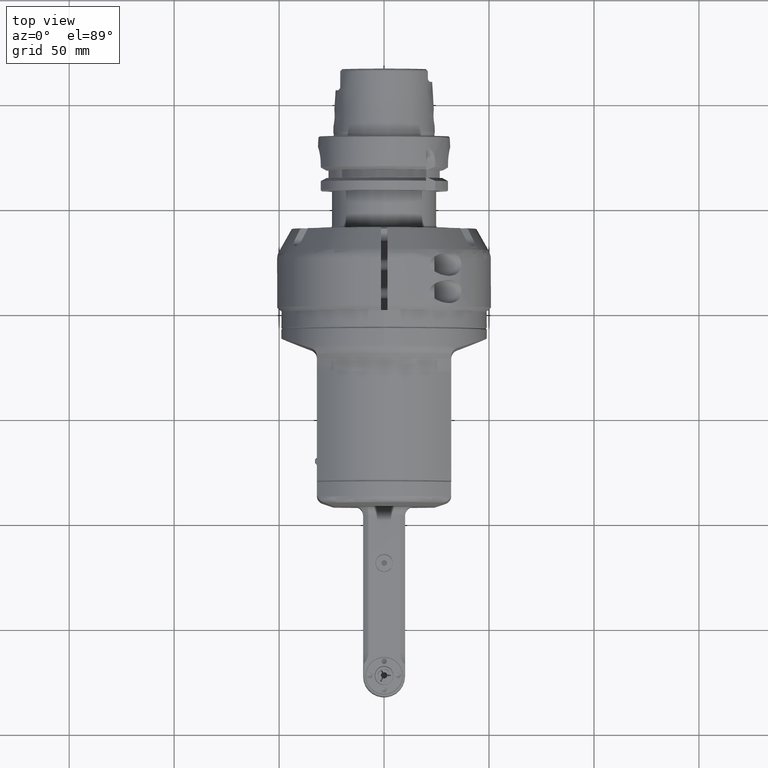
[diagram: clean part render]
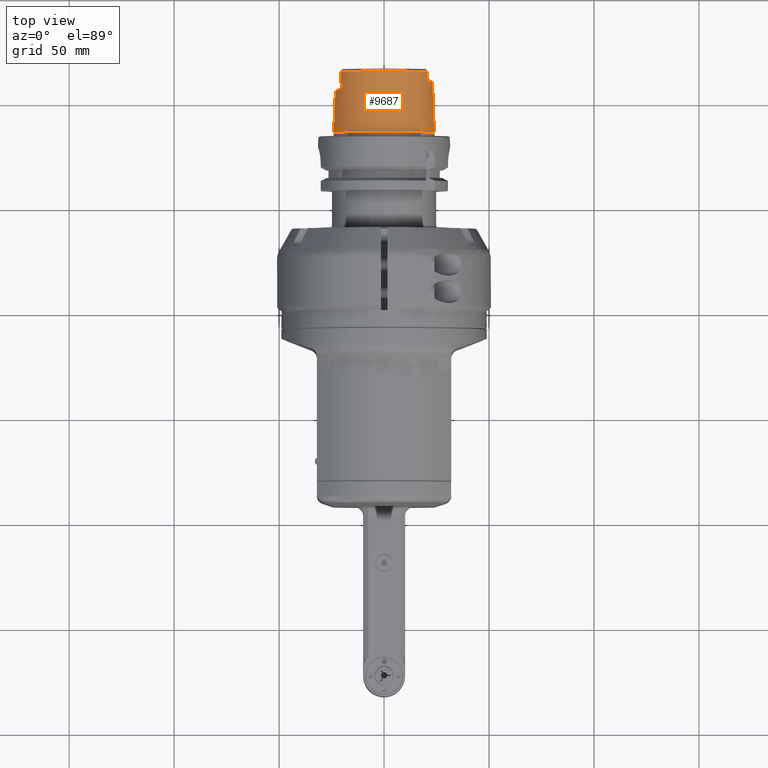
[diagram: same view with one face highlighted and labeled with its STEP entity id]
A machine part, top view. The second image highlights one B-rep face of the part: STEP entity #9687.
In plain terms, the highlighted conical surface has half-angle 2.868 deg.
Its self-contained STEP definition (entity closure, byte-faithful):
#307=FACE_BOUND('',#1601,.T.);
#308=FACE_BOUND('',#1602,.T.);
#420=(
BOUNDED_CURVE()
B_SPLINE_CURVE(2,(#15464,#15465,#15466),.UNSPECIFIED.,.F.,.F.)
B_SPLINE_CURVE_WITH_KNOTS((3,3),(1.86693789051421,2.5252025093279),
 .UNSPECIFIED.)
CURVE()
GEOMETRIC_REPRESENTATION_ITEM()
RATIONAL_B_SPLINE_CURVE((1.02439092202946,1.02616919741191,1.02616919750134))
REPRESENTATION_ITEM('')
);
#421=(
BOUNDED_CURVE()
B_SPLINE_CURVE(2,(#15533,#15534,#15535),.UNSPECIFIED.,.F.,.F.)
B_SPLINE_CURVE_WITH_KNOTS((3,3),(2.52520257553613,3.18346719434885),
 .UNSPECIFIED.)
CURVE()
GEOMETRIC_REPRESENTATION_ITEM()
RATIONAL_B_SPLINE_CURVE((1.02616919750134,1.0261691974119,1.02439092202946))
REPRESENTATION_ITEM('')
);
#800=CONICAL_SURFACE('',#10489,23.49739340079,0.0500570901447486);
#1009=FACE_OUTER_BOUND('',#1600,.T.);
#1600=EDGE_LOOP('',(#7244,#7245,#7246,#7247,#7248,#7249,#7250,#7251,#7252,
#7253,#7254,#7255,#7256,#7257,#7258,#7259,#7260,#7261,#7262,#7263,#7264));
#1601=EDGE_LOOP('',(#7265,#7266));
#1602=EDGE_LOOP('',(#7267));
#2200=CIRCLE('',#10487,24.22021898401);
#2201=CIRCLE('',#10488,24.22021898401);
#2202=CIRCLE('',#10490,22.77456781756);
#2203=CIRCLE('',#10491,23.01805084955);
#2204=CIRCLE('',#10492,22.77456781756);
#2205=CIRCLE('',#10493,23.21844661614);
#2206=CIRCLE('',#10494,22.77456781756);
#2579=B_SPLINE_CURVE_WITH_KNOTS('',3,(#15393,#15394,#15395,#15396,#15397,
#15398,#15399,#15400),.UNSPECIFIED.,.F.,.F.,(4,2,2,4),(1.87852144760714,
1.96332966499537,2.14651647101209,2.20196364531662),.UNSPECIFIED.);
#2580=B_SPLINE_CURVE_WITH_KNOTS('',3,(#15402,#15403,#15404,#15405,#15406,
#15407,#15408,#15409,#15410,#15411,#15412,#15413,#15414,#15415),
 .UNSPECIFIED.,.F.,.F.,(4,2,2,2,2,2,4),(0.648088302085378,0.67504823879193,
0.706405860352622,0.747031442334294,0.813706573923428,0.931756672705542,
0.968140813905552),.UNSPECIFIED.);
#2581=B_SPLINE_CURVE_WITH_KNOTS('',3,(#15419,#15420,#15421,#15422,#15423,
#15424,#15425,#15426,#15427,#15428,#15429,#15430,#15431,#15432),
 .UNSPECIFIED.,.F.,.F.,(4,2,2,2,2,2,4),(0.250897982794745,0.32289928639896,
0.451677279406398,0.504038531696657,0.537850831835839,0.567600566613487,
0.5820221192563),.UNSPECIFIED.);
#2582=B_SPLINE_CURVE_WITH_KNOTS('',3,(#15434,#15435,#15436,#15437,#15438,
#15439,#15440,#15441),.UNSPECIFIED.,.F.,.F.,(4,2,2,4),(1.04367366398559,
1.09912083762025,1.28230764389029,1.36711586171919),.UNSPECIFIED.);
#2583=B_SPLINE_CURVE_WITH_KNOTS('',3,(#15445,#15446,#15447,#15448,#15449,
#15450,#15451,#15452,#15453,#15454,#15455,#15456,#15457,#15458,#15459,#15460,
#15461,#15462),.UNSPECIFIED.,.F.,.F.,(4,2,2,2,2,2,2,2,4),(1.62281865268316,
1.63031260903777,1.63780656539237,1.65279447810159,1.71646866782222,1.78014285754286,
1.96332966286606,2.14651646818926,2.20196364304312),.UNSPECIFIED.);
#2584=B_SPLINE_CURVE_WITH_KNOTS('',3,(#15468,#15469,#15470,#15471,#15472,
#15473,#15474,#15475,#15476,#15477,#15478,#15479,#15480,#15481,#15482,#15483,
#15484,#15485,#15486),.UNSPECIFIED.,.F.,.F.,(4,2,2,2,2,2,3,2,4),(0.591686858486119,
0.711318405574479,0.753394480811399,0.769620085407919,0.779298074344639,
0.784137068813,0.78897606328136,0.793827590149413,0.796896752134967),
 .UNSPECIFIED.);
#2585=B_SPLINE_CURVE_WITH_KNOTS('',3,(#15488,#15489,#15490,#15491,#15492,
#15493,#15494,#15495,#15496,#15497,#15498,#15499),.UNSPECIFIED.,.F.,.F.,
(4,2,2,2,2,4),(-1.35810253274609,-1.33001864997158,-1.27929112228705,-1.22120744000346,
-1.19655389716661,-1.18646391721583),.UNSPECIFIED.);
#2586=B_SPLINE_CURVE_WITH_KNOTS('',3,(#15503,#15504,#15505,#15506,#15507,
#15508,#15509,#15510,#15511,#15512),.UNSPECIFIED.,.F.,.F.,(4,2,2,2,4),(-0.500911046831581,
-0.481998817135151,-0.442781745818096,-0.333902719664991,-0.278648797669768),
 .UNSPECIFIED.);
#2587=B_SPLINE_CURVE_WITH_KNOTS('',3,(#15514,#15515,#15516,#15517,#15518,
#15519,#15520,#15521,#15522,#15523,#15524,#15525,#15526,#15527,#15528,#15529,
#15530,#15531),.UNSPECIFIED.,.F.,.F.,(4,2,2,2,2,2,2,2,4),(0.386476945536789,
0.389546107522341,0.394397634390394,0.399236628858755,0.404075623327115,
0.413753612263837,0.429979216860358,0.472055292097276,0.591686839185636),
 .UNSPECIFIED.);
#2588=B_SPLINE_CURVE_WITH_KNOTS('',3,(#15537,#15538,#15539,#15540,#15541,
#15542,#15543,#15544,#15545,#15546,#15547,#15548,#15549,#15550,#15551,#15552,
#15553,#15554),.UNSPECIFIED.,.F.,.F.,(4,2,2,2,2,2,2,2,4),(1.04367366561104,
1.09912083861657,1.2823076446389,1.46549445066122,1.5291686406059,1.59284283055058,
1.60783074329144,1.61532469966187,1.6228186560323),.UNSPECIFIED.);
#2589=B_SPLINE_CURVE_WITH_KNOTS('',3,(#15558,#15559,#15560,#15561,#15562,
#15563,#15564,#15565,#15566,#15567,#15568,#15569,#15570,#15571,#15572,#15573,
#15574,#15575,#15576),.UNSPECIFIED.,.F.,.F.,(4,2,2,2,3,2,2,2,4),(-0.56247523473426,
-0.421758779612593,-0.281042324490925,-0.140521162245463,0.,0.142680728235708,
0.285361456471416,0.427838019281762,0.570314582092107),.UNSPECIFIED.);
#2590=B_SPLINE_CURVE_WITH_KNOTS('',3,(#15577,#15578,#15579,#15580,#15581,
#15582,#15583,#15584,#15585,#15586,#15587,#15588,#15589,#15590,#15591,#15592,
#15593,#15594),.UNSPECIFIED.,.F.,.F.,(4,2,2,2,2,2,2,2,4),(0.570314582092107,
0.712791144902453,0.855267707712798,0.997948435948506,1.14062916418421,
1.28115032642968,1.42167148867514,1.56238794379681,1.70310439891847),
 .UNSPECIFIED.);
#2591=B_SPLINE_CURVE_WITH_KNOTS('',3,(#15596,#15597,#15598,#15599,#15600,
#15601,#15602,#15603,#15604,#15605,#15606,#15607,#15608,#15609,#15610,#15611,
#15612,#15613,#15614,#15615,#15616,#15617,#15618,#15619,#15620,#15621,#15622,
#15623,#15624,#15625,#15626,#15627,#15628,#15629),.UNSPECIFIED.,.T.,.F.,
(4,2,2,2,2,2,2,2,2,2,2,2,2,2,2,2,4),(-2.26557963365273,-2.12505847140727,
-1.98453730916181,-1.84382085404014,-1.70310439891847,-1.56238794379681,
-1.42167148867514,-1.28115032642968,-1.14062916418421,-0.997948435948507,
-0.855267707712798,-0.712791144902453,-0.570314582092107,-0.427838019281762,
-0.285361456471416,-0.142680728235708,0.),.UNSPECIFIED.);
#2912=LINE('',#15389,#3584);
#3584=VECTOR('',#11977,23.49739340079);
#4344=VERTEX_POINT('',#15382);
#4345=VERTEX_POINT('',#15383);
#4346=VERTEX_POINT('',#15388);
#4347=VERTEX_POINT('',#15390);
#4348=VERTEX_POINT('',#15392);
#4349=VERTEX_POINT('',#15401);
#4350=VERTEX_POINT('',#15416);
#4351=VERTEX_POINT('',#15418);
#4352=VERTEX_POINT('',#15433);
#4353=VERTEX_POINT('',#15442);
#4354=VERTEX_POINT('',#15444);
#4355=VERTEX_POINT('',#15463);
#4356=VERTEX_POINT('',#15467);
#4357=VERTEX_POINT('',#15487);
#4358=VERTEX_POINT('',#15500);
#4359=VERTEX_POINT('',#15502);
#4360=VERTEX_POINT('',#15513);
#4361=VERTEX_POINT('',#15532);
#4362=VERTEX_POINT('',#15536);
#4363=VERTEX_POINT('',#15556);
#4364=VERTEX_POINT('',#15557);
#4365=VERTEX_POINT('',#15595);
#5424=EDGE_CURVE('',#4344,#4345,#2200,.T.);
#5425=EDGE_CURVE('',#4345,#4344,#2201,.T.);
#5427=EDGE_CURVE('',#4344,#4346,#2912,.T.);
#5428=EDGE_CURVE('',#4346,#4347,#2202,.T.);
#5429=EDGE_CURVE('',#4348,#4347,#2579,.T.);
#5430=EDGE_CURVE('',#4348,#4349,#2580,.T.);
#5431=EDGE_CURVE('',#4350,#4349,#2203,.T.);
#5432=EDGE_CURVE('',#4350,#4351,#2581,.T.);
#5433=EDGE_CURVE('',#4352,#4351,#2582,.T.);
#5434=EDGE_CURVE('',#4353,#4352,#2204,.T.);
#5435=EDGE_CURVE('',#4354,#4353,#2583,.T.);
#5436=EDGE_CURVE('',#4355,#4354,#420,.T.);
#5437=EDGE_CURVE('',#4356,#4355,#2584,.T.);
#5438=EDGE_CURVE('',#4357,#4356,#2585,.T.);
#5439=EDGE_CURVE('',#4358,#4357,#2205,.T.);
#5440=EDGE_CURVE('',#4359,#4358,#2586,.T.);
#5441=EDGE_CURVE('',#4360,#4359,#2587,.T.);
#5442=EDGE_CURVE('',#4361,#4360,#421,.T.);
#5443=EDGE_CURVE('',#4362,#4361,#2588,.T.);
#5444=EDGE_CURVE('',#4362,#4346,#2206,.T.);
#5445=EDGE_CURVE('',#4363,#4364,#2589,.T.);
#5446=EDGE_CURVE('',#4364,#4363,#2590,.T.);
#5447=EDGE_CURVE('',#4365,#4365,#2591,.T.);
#7244=ORIENTED_EDGE('',*,*,#5424,.T.);
#7245=ORIENTED_EDGE('',*,*,#5425,.T.);
#7246=ORIENTED_EDGE('',*,*,#5427,.T.);
#7247=ORIENTED_EDGE('',*,*,#5428,.T.);
#7248=ORIENTED_EDGE('',*,*,#5429,.F.);
#7249=ORIENTED_EDGE('',*,*,#5430,.T.);
#7250=ORIENTED_EDGE('',*,*,#5431,.F.);
#7251=ORIENTED_EDGE('',*,*,#5432,.T.);
#7252=ORIENTED_EDGE('',*,*,#5433,.F.);
#7253=ORIENTED_EDGE('',*,*,#5434,.F.);
#7254=ORIENTED_EDGE('',*,*,#5435,.F.);
#7255=ORIENTED_EDGE('',*,*,#5436,.F.);
#7256=ORIENTED_EDGE('',*,*,#5437,.F.);
#7257=ORIENTED_EDGE('',*,*,#5438,.F.);
#7258=ORIENTED_EDGE('',*,*,#5439,.F.);
#7259=ORIENTED_EDGE('',*,*,#5440,.F.);
#7260=ORIENTED_EDGE('',*,*,#5441,.F.);
#7261=ORIENTED_EDGE('',*,*,#5442,.F.);
#7262=ORIENTED_EDGE('',*,*,#5443,.F.);
#7263=ORIENTED_EDGE('',*,*,#5444,.T.);
#7264=ORIENTED_EDGE('',*,*,#5427,.F.);
#7265=ORIENTED_EDGE('',*,*,#5445,.T.);
#7266=ORIENTED_EDGE('',*,*,#5446,.T.);
#7267=ORIENTED_EDGE('',*,*,#5447,.T.);
#9687=ADVANCED_FACE('',(#1009,#307,#308),#800,.T.);
#10487=AXIS2_PLACEMENT_3D('',#15384,#11970,#11971);
#10488=AXIS2_PLACEMENT_3D('',#15385,#11972,#11973);
#10489=AXIS2_PLACEMENT_3D('',#15387,#11975,#11976);
#10490=AXIS2_PLACEMENT_3D('',#15391,#11978,#11979);
#10491=AXIS2_PLACEMENT_3D('',#15417,#11980,#11981);
#10492=AXIS2_PLACEMENT_3D('',#15443,#11982,#11983);
#10493=AXIS2_PLACEMENT_3D('',#15501,#11984,#11985);
#10494=AXIS2_PLACEMENT_3D('',#15555,#11986,#11987);
#11970=DIRECTION('center_axis',(0.,1.,0.));
#11971=DIRECTION('ref_axis',(-0.707106781186547,0.,-0.707106781186547));
#11972=DIRECTION('center_axis',(0.,1.,0.));
#11973=DIRECTION('ref_axis',(-0.707106781186547,0.,-0.707106781186547));
#11975=DIRECTION('center_axis',(0.,-1.,0.));
#11976=DIRECTION('ref_axis',(0.707106781186548,0.,0.707106781186548));
#11977=DIRECTION('',(0.0353809278297194,0.998747405449354,0.0353809278297194));
#11978=DIRECTION('center_axis',(0.,-1.,0.));
#11979=DIRECTION('ref_axis',(-0.707106781186547,0.,-0.707106781186547));
#11980=DIRECTION('center_axis',(0.,1.,0.));
#11981=DIRECTION('ref_axis',(0.950655672568357,0.,0.310247952795186));
#11982=DIRECTION('center_axis',(0.,1.,0.));
#11983=DIRECTION('ref_axis',(0.,0.,1.));
#11984=DIRECTION('center_axis',(0.,1.,0.));
#11985=DIRECTION('ref_axis',(-0.94780590928591,0.,-0.318847860778003));
#11986=DIRECTION('center_axis',(0.,-1.,0.));
#11987=DIRECTION('ref_axis',(-0.707106781186547,0.,-0.707106781186547));
#15382=CARTESIAN_POINT('',(-17.12628108542,85.50412114642,-17.12628108542));
#15383=CARTESIAN_POINT('',(17.1262810854204,85.5041211464186,17.1262810854204));
#15384=CARTESIAN_POINT('Origin',(1.347113091385E-14,85.50412114642,0.));
#15385=CARTESIAN_POINT('Origin',(1.347113091385E-14,85.50412114642,0.));
#15387=CARTESIAN_POINT('Origin',(1.347113091385E-14,99.932082286,0.));
#15388=CARTESIAN_POINT('',(-16.1040513423943,114.360043425581,-16.1040513423943));
#15389=CARTESIAN_POINT('',(-16.6151662139066,99.932082286,-16.6151662139066));
#15390=CARTESIAN_POINT('',(20.86981835535,114.36004342558,-9.117654363463));
#15391=CARTESIAN_POINT('Origin',(1.347113091385E-14,114.36004342558,0.));
#15392=CARTESIAN_POINT('',(20.83290092553,111.,-9.610775788882));
#15393=CARTESIAN_POINT('Ctrl Pts',(20.8329009255283,111.000000000002,-9.61077578889373));
#15394=CARTESIAN_POINT('Ctrl Pts',(20.8413724806425,111.283490428274,-9.55850786932113));
#15395=CARTESIAN_POINT('Ctrl Pts',(20.8478073405863,111.570248202706,-9.50986699995181));
#15396=CARTESIAN_POINT('Ctrl Pts',(20.8638217744841,112.4851565585,-9.36366646758571));
#15397=CARTESIAN_POINT('Ctrl Pts',(20.8685085877053,113.123343076142,-9.27459532051356));
#15398=CARTESIAN_POINT('Ctrl Pts',(20.8700624475187,113.966127053925,-9.16631082824764));
#15399=CARTESIAN_POINT('Ctrl Pts',(20.8700887194267,114.162743462984,-9.14172559906327));
#15400=CARTESIAN_POINT('Ctrl Pts',(20.8698183553477,114.360043425581,-9.11765436347179));
#15401=CARTESIAN_POINT('',(21.88224061159,109.5,-7.141303153407));
#15402=CARTESIAN_POINT('Ctrl Pts',(20.8329009255283,111.000000000002,-9.61077578889374));
#15403=CARTESIAN_POINT('Ctrl Pts',(20.8314489924963,110.951412803024,-9.61973394568026));
#15404=CARTESIAN_POINT('Ctrl Pts',(20.8336401790429,110.903310110275,-9.62073721834895));
#15405=CARTESIAN_POINT('Ctrl Pts',(20.8464278881812,110.798560865748,-9.60554521151347));
#15406=CARTESIAN_POINT('Ctrl Pts',(20.8578578636761,110.745706969117,-9.58707640182997));
#15407=CARTESIAN_POINT('Ctrl Pts',(20.8893183107881,110.632799684012,-9.53199317457096));
#15408=CARTESIAN_POINT('Ctrl Pts',(20.9150585072333,110.560268786847,-9.48448009125569));
#15409=CARTESIAN_POINT('Ctrl Pts',(21.0151373924235,110.338647872012,-9.28874691392544));
#15410=CARTESIAN_POINT('Ctrl Pts',(21.0971469157375,110.198710144837,-9.11993002449012));
#15411=CARTESIAN_POINT('Ctrl Pts',(21.3346001590644,109.852193060079,-8.60152235861784));
#15412=CARTESIAN_POINT('Ctrl Pts',(21.5309104117373,109.629495595536,-8.1402860872223));
#15413=CARTESIAN_POINT('Ctrl Pts',(21.77828244444,109.513086935923,-7.45228581516806));
#15414=CARTESIAN_POINT('Ctrl Pts',(21.8323572224781,109.5,-7.29415485282921));
#15415=CARTESIAN_POINT('Ctrl Pts',(21.8822406115908,109.5,-7.14130315340726));
#15416=CARTESIAN_POINT('',(21.88224061159,109.5,7.141303153408));
#15417=CARTESIAN_POINT('Origin',(1.347113091385E-14,109.5,0.));
#15418=CARTESIAN_POINT('',(20.83290092553,111.00000000001,9.610775788879));
#15419=CARTESIAN_POINT('Ctrl Pts',(21.8822406115905,109.5,7.14130315340816));
#15420=CARTESIAN_POINT('Ctrl Pts',(21.7933640580373,109.5,7.41363694008591));
#15421=CARTESIAN_POINT('Ctrl Pts',(21.6957996581471,109.541612162461,7.68824455746597));
#15422=CARTESIAN_POINT('Ctrl Pts',(21.409444593117,109.755793077105,8.43441100564512));
#15423=CARTESIAN_POINT('Ctrl Pts',(21.2243799959674,109.995523502604,8.84932399272184));
#15424=CARTESIAN_POINT('Ctrl Pts',(21.0365866986543,110.306237291123,9.24395926600556));
#15425=CARTESIAN_POINT('Ctrl Pts',(20.9761032068554,110.416630584019,9.36659326279732));
#15426=CARTESIAN_POINT('Ctrl Pts',(20.8950552401853,110.614619990408,9.52178759584923));
#15427=CARTESIAN_POINT('Ctrl Pts',(20.8739760220774,110.682079648045,9.55958934574004));
#15428=CARTESIAN_POINT('Ctrl Pts',(20.8472940080879,110.795275231779,9.60408350993952));
#15429=CARTESIAN_POINT('Ctrl Pts',(20.8380106848695,110.851677199847,9.61743794135666));
#15430=CARTESIAN_POINT('Ctrl Pts',(20.8324598638865,110.941732781479,9.61869765129533));
#15431=CARTESIAN_POINT('Ctrl Pts',(20.8320321566572,110.970927692037,9.61613593125914));
#15432=CARTESIAN_POINT('Ctrl Pts',(20.8329009255286,111.000000000012,9.61077578889186));
#15433=CARTESIAN_POINT('',(20.86981835535,114.36004342558,9.117654363463));
#15434=CARTESIAN_POINT('Ctrl Pts',(20.8698183553477,114.360043425581,9.11765436347179));
#15435=CARTESIAN_POINT('Ctrl Pts',(20.8700887194234,114.162743465383,9.1417255987706));
#15436=CARTESIAN_POINT('Ctrl Pts',(20.8700624475193,113.966127058706,9.16631082764981));
#15437=CARTESIAN_POINT('Ctrl Pts',(20.8685085877441,113.12334308238,9.27459531965703));
#15438=CARTESIAN_POINT('Ctrl Pts',(20.8638217745454,112.485156563843,9.36366646679598));
#15439=CARTESIAN_POINT('Ctrl Pts',(20.8478073406529,111.570248205658,9.50986699945028));
#15440=CARTESIAN_POINT('Ctrl Pts',(20.8413724806862,111.28349042974,9.55850786905095));
#15441=CARTESIAN_POINT('Ctrl Pts',(20.8329009255286,111.000000000012,9.61077578889185));
#15442=CARTESIAN_POINT('',(-20.86981835533,114.36004342558,9.117654363498));
#15443=CARTESIAN_POINT('Origin',(1.347113091385E-14,114.36004342558,0.));
#15444=CARTESIAN_POINT('',(-20.55704259638,108.59828716012,10.45563865919));
#15445=CARTESIAN_POINT('Ctrl Pts',(-20.5570425901344,108.598287160182,10.4556386714692));
#15446=CARTESIAN_POINT('Ctrl Pts',(-20.5683671261878,108.598287162269,10.433373271905));
#15447=CARTESIAN_POINT('Ctrl Pts',(-20.5788186542378,108.603942557601,10.4121101512896));
#15448=CARTESIAN_POINT('Ctrl Pts',(-20.5981622584297,108.623292714809,10.3716348829625));
#15449=CARTESIAN_POINT('Ctrl Pts',(-20.6070594656734,108.63696673309,10.3524152746639));
#15450=CARTESIAN_POINT('Ctrl Pts',(-20.6315611276163,108.685669135694,10.2980927518617));
#15451=CARTESIAN_POINT('Ctrl Pts',(-20.6450434356398,108.72812725655,10.2662245706467));
#15452=CARTESIAN_POINT('Ctrl Pts',(-20.7016700091883,108.943440630208,10.1277106806721));
#15453=CARTESIAN_POINT('Ctrl Pts',(-20.7253784620132,109.158216249338,10.0539998399404));
#15454=CARTESIAN_POINT('Ctrl Pts',(-20.7668254275143,109.596251093511,9.91728957146815));
#15455=CARTESIAN_POINT('Ctrl Pts',(-20.7815789717773,109.821519834535,9.85990522650072));
#15456=CARTESIAN_POINT('Ctrl Pts',(-20.8259087989342,110.621432468118,9.67204980871616));
#15457=CARTESIAN_POINT('Ctrl Pts',(-20.8419285842928,111.234393481968,9.56353591522435));
#15458=CARTESIAN_POINT('Ctrl Pts',(-20.8638217744216,112.485156553064,9.36366646838923));
#15459=CARTESIAN_POINT('Ctrl Pts',(-20.8685085876657,113.123343069794,9.27459532138512));
#15460=CARTESIAN_POINT('Ctrl Pts',(-20.8700624475181,113.966127049058,9.16631082885614));
#15461=CARTESIAN_POINT('Ctrl Pts',(-20.87008871943,114.16274346054,9.14172559936142));
#15462=CARTESIAN_POINT('Ctrl Pts',(-20.8698183553477,114.360043425577,9.1176543634723));
#15463=CARTESIAN_POINT('',(-19.685027866,107.,12.17012447178));
#15464=CARTESIAN_POINT('Ctrl Pts',(-19.6850278659878,107.000000000015,12.1701244718009));
#15465=CARTESIAN_POINT('Ctrl Pts',(-20.1217907997496,108.598287079941,11.3113960268442));
#15466=CARTESIAN_POINT('Ctrl Pts',(-20.5570425963522,108.598287160179,10.4556386592447));
#15467=CARTESIAN_POINT('',(-20.65337930986,106.44092683567,10.50463704262));
#15468=CARTESIAN_POINT('Ctrl Pts',(-20.6533793536115,106.440926835661,10.5046369566053));
#15469=CARTESIAN_POINT('Ctrl Pts',(-20.4725974305277,106.440926840385,10.8600759507545));
#15470=CARTESIAN_POINT('Ctrl Pts',(-20.2429928414844,106.472474551644,11.2787331001345));
#15471=CARTESIAN_POINT('Ctrl Pts',(-19.9736961951904,106.582759225235,11.7324566113102));
#15472=CARTESIAN_POINT('Ctrl Pts',(-19.8889135428888,106.625901829798,11.8712980961836));
#15473=CARTESIAN_POINT('Ctrl Pts',(-19.7935089562315,106.703861223558,12.0215908841504));
#15474=CARTESIAN_POINT('Ctrl Pts',(-19.7622825990608,106.733836663465,12.0699511150093));
#15475=CARTESIAN_POINT('Ctrl Pts',(-19.7237601065718,106.78500932448,12.1278552591121));
#15476=CARTESIAN_POINT('Ctrl Pts',(-19.7088419471517,106.808455418183,12.1498329028668));
#15477=CARTESIAN_POINT('Ctrl Pts',(-19.691608797045,106.848940865035,12.1738756749758));
#15478=CARTESIAN_POINT('Ctrl Pts',(-19.686685553039,106.863297386325,12.1804656176304));
#15479=CARTESIAN_POINT('Ctrl Pts',(-19.6794566962154,106.893381877848,12.189279508972));
#15480=CARTESIAN_POINT('Ctrl Pts',(-19.6771391685607,106.909101013146,12.1915238238229));
#15481=CARTESIAN_POINT('Ctrl Pts',(-19.6764530970834,106.925210791138,12.1910987489841));
#15482=CARTESIAN_POINT('Ctrl Pts',(-19.6757652487654,106.94136229147,12.1906725732538));
#15483=CARTESIAN_POINT('Ctrl Pts',(-19.6767494293032,106.957121314436,12.1875860130507));
#15484=CARTESIAN_POINT('Ctrl Pts',(-19.6805617300192,106.981758273672,12.1790827163535));
#15485=CARTESIAN_POINT('Ctrl Pts',(-19.6825792075815,106.991039397354,12.1749388286616));
#15486=CARTESIAN_POINT('Ctrl Pts',(-19.6850278659941,107.000000000008,12.1701244717914));
#15487=CARTESIAN_POINT('',(-22.00658090721,105.5,7.403152034143));
#15488=CARTESIAN_POINT('Ctrl Pts',(-22.0065809072154,105.5,7.4031520341448));
#15489=CARTESIAN_POINT('Ctrl Pts',(-21.9446354867472,105.5,7.58729074979955));
#15490=CARTESIAN_POINT('Ctrl Pts',(-21.8700373454034,105.516951499018,7.79894073569062));
#15491=CARTESIAN_POINT('Ctrl Pts',(-21.6158859211317,105.646590962573,8.46885044146755));
#15492=CARTESIAN_POINT('Ctrl Pts',(-21.4523054246618,105.797773516392,8.84986186883586));
#15493=CARTESIAN_POINT('Ctrl Pts',(-21.1477208781622,106.099309719733,9.52003982973984));
#15494=CARTESIAN_POINT('Ctrl Pts',(-21.0011530218963,106.260525851965,9.816480940296));
#15495=CARTESIAN_POINT('Ctrl Pts',(-20.8163823818215,106.394105083438,10.1838806620518));
#15496=CARTESIAN_POINT('Ctrl Pts',(-20.7653534048569,106.421061633791,10.2843617168617));
#15497=CARTESIAN_POINT('Ctrl Pts',(-20.6942562737177,106.438392606277,10.4242598914347));
#15498=CARTESIAN_POINT('Ctrl Pts',(-20.6738427993982,106.440926835122,10.4644033621003));
#15499=CARTESIAN_POINT('Ctrl Pts',(-20.6533793098626,106.440926835657,10.5046370426213));
#15500=CARTESIAN_POINT('',(-22.00658090721,105.5,-7.403152034143));
#15501=CARTESIAN_POINT('Origin',(1.347113091385E-14,105.5,0.));
#15502=CARTESIAN_POINT('',(-20.65337930986,106.44092683567,-10.50463704262));
#15503=CARTESIAN_POINT('Ctrl Pts',(-20.6533793098626,106.440926835657,-10.5046370426213));
#15504=CARTESIAN_POINT('Ctrl Pts',(-20.6847919576156,106.440926834835,-10.4428760007516));
#15505=CARTESIAN_POINT('Ctrl Pts',(-20.7158427666053,106.434945219954,-10.3818148893931));
#15506=CARTESIAN_POINT('Ctrl Pts',(-20.8128316240174,106.399659003094,-10.1907910100508));
#15507=CARTESIAN_POINT('Ctrl Pts',(-20.8800772428557,106.352455114751,-10.0580924634214));
#15508=CARTESIAN_POINT('Ctrl Pts',(-21.1610245006451,106.107768514179,-9.49261363253437));
#15509=CARTESIAN_POINT('Ctrl Pts',(-21.4217726730621,105.790002036225,-8.94733733032288));
#15510=CARTESIAN_POINT('Ctrl Pts',(-21.8234662449697,105.528230617779,-7.93109170591475));
#15511=CARTESIAN_POINT('Ctrl Pts',(-21.9263762672941,105.5,-7.64156803444037));
#15512=CARTESIAN_POINT('Ctrl Pts',(-22.0065809072154,105.5,-7.4031520341448));
#15513=CARTESIAN_POINT('',(-19.685027866,107.,-12.17012447178));
#15514=CARTESIAN_POINT('Ctrl Pts',(-19.6850278659941,107.000000000008,-12.1701244717914));
#15515=CARTESIAN_POINT('Ctrl Pts',(-19.6825792075815,106.991039397354,-12.1749388286616));
#15516=CARTESIAN_POINT('Ctrl Pts',(-19.6805617300192,106.981758273672,-12.1790827163535));
#15517=CARTESIAN_POINT('Ctrl Pts',(-19.6767494293032,106.957121314436,-12.1875860130507));
#15518=CARTESIAN_POINT('Ctrl Pts',(-19.6757652487654,106.94136229147,-12.1906725732538));
#15519=CARTESIAN_POINT('Ctrl Pts',(-19.6771391685607,106.909101013146,-12.1915238238229));
#15520=CARTESIAN_POINT('Ctrl Pts',(-19.6794566962155,106.893381877848,-12.189279508972));
#15521=CARTESIAN_POINT('Ctrl Pts',(-19.686685553039,106.863297386325,-12.1804656176304));
#15522=CARTESIAN_POINT('Ctrl Pts',(-19.691608797045,106.848940865035,-12.1738756749759));
#15523=CARTESIAN_POINT('Ctrl Pts',(-19.7088419471517,106.808455418183,-12.1498329028668));
#15524=CARTESIAN_POINT('Ctrl Pts',(-19.7237601065718,106.78500932448,-12.127855259112));
#15525=CARTESIAN_POINT('Ctrl Pts',(-19.7622825990608,106.733836663465,-12.0699511150093));
#15526=CARTESIAN_POINT('Ctrl Pts',(-19.7935089562315,106.703861223558,-12.0215908841504));
#15527=CARTESIAN_POINT('Ctrl Pts',(-19.8889135428888,106.625901829798,-11.8712980961836));
#15528=CARTESIAN_POINT('Ctrl Pts',(-19.9736961951904,106.582759225235,-11.7324566113102));
#15529=CARTESIAN_POINT('Ctrl Pts',(-20.2429928414844,106.472474551644,-11.2787331001345));
#15530=CARTESIAN_POINT('Ctrl Pts',(-20.472597432219,106.440926835661,-10.8600759516147));
#15531=CARTESIAN_POINT('Ctrl Pts',(-20.6533793536115,106.440926835661,-10.5046369566053));
#15532=CARTESIAN_POINT('',(-20.55704259638,108.59828716012,-10.45563865919));
#15533=CARTESIAN_POINT('Ctrl Pts',(-20.5570425963509,108.598287160179,-10.4556386592471));
#15534=CARTESIAN_POINT('Ctrl Pts',(-20.121790799749,108.598287079939,-11.3113960268454));
#15535=CARTESIAN_POINT('Ctrl Pts',(-19.6850278659878,107.000000000015,-12.1701244718009));
#15536=CARTESIAN_POINT('',(-20.86981835535,114.36004342558,-9.117654363463));
#15537=CARTESIAN_POINT('Ctrl Pts',(-20.8698183553477,114.360043425581,-9.1176543634718));
#15538=CARTESIAN_POINT('Ctrl Pts',(-20.8700887194209,114.162743467163,-9.14172559855336));
#15539=CARTESIAN_POINT('Ctrl Pts',(-20.8700624475197,113.966127062256,-9.16631082720605));
#15540=CARTESIAN_POINT('Ctrl Pts',(-20.8685085877729,113.12334308701,-9.27459531902123));
#15541=CARTESIAN_POINT('Ctrl Pts',(-20.8638217745908,112.485156567809,-9.36366646620984));
#15542=CARTESIAN_POINT('Ctrl Pts',(-20.8419285845549,111.23439349186,-9.56353591346666));
#15543=CARTESIAN_POINT('Ctrl Pts',(-20.8259087992307,110.621432475627,-9.67204980718885));
#15544=CARTESIAN_POINT('Ctrl Pts',(-20.7815789720648,109.821519838973,-9.85990522537639));
#15545=CARTESIAN_POINT('Ctrl Pts',(-20.7668254277979,109.59625109713,-9.91728957045448));
#15546=CARTESIAN_POINT('Ctrl Pts',(-20.7253784622613,109.158216251336,-10.0539998392007));
#15547=CARTESIAN_POINT('Ctrl Pts',(-20.7016700094214,108.943440631395,-10.127710680064));
#15548=CARTESIAN_POINT('Ctrl Pts',(-20.6450434357602,108.728127256937,-10.266224570361));
#15549=CARTESIAN_POINT('Ctrl Pts',(-20.6315611277239,108.685669135968,-10.2980927516157));
#15550=CARTESIAN_POINT('Ctrl Pts',(-20.6070594657535,108.636966733219,-10.3524152744901));
#15551=CARTESIAN_POINT('Ctrl Pts',(-20.5981622584988,108.623292714897,-10.3716348828157));
#15552=CARTESIAN_POINT('Ctrl Pts',(-20.5788186542789,108.603942557623,-10.4121101512061));
#15553=CARTESIAN_POINT('Ctrl Pts',(-20.5683671263183,108.598287160182,-10.4333732719121));
#15554=CARTESIAN_POINT('Ctrl Pts',(-20.5570425901344,108.598287160182,-10.4556386714692));
#15555=CARTESIAN_POINT('Origin',(1.347113091385E-14,114.36004342558,0.));
#15556=CARTESIAN_POINT('',(-23.68186182637,96.25,0.));
#15557=CARTESIAN_POINT('',(-24.0576038887331,88.75,4.59242549680257E-16));
#15558=CARTESIAN_POINT('Ctrl Pts',(-23.6818618263774,96.25,-9.71445146547012E-16));
#15559=CARTESIAN_POINT('Ctrl Pts',(-23.6818618263774,96.25,0.469054850405556));
#15560=CARTESIAN_POINT('Ctrl Pts',(-23.6711804503687,96.1566215303588,0.969264895238196));
#15561=CARTESIAN_POINT('Ctrl Pts',(-23.6345973217103,95.777053954328,1.88978114724752));
#15562=CARTESIAN_POINT('Ctrl Pts',(-23.6094750319828,95.4908863561182,2.31012703498402));
#15563=CARTESIAN_POINT('Ctrl Pts',(-23.5683046058624,94.8309014900085,2.97462220634907));
#15564=CARTESIAN_POINT('Ctrl Pts',(-23.5496143871783,94.4129130783974,3.2635247030736));
#15565=CARTESIAN_POINT('Ctrl Pts',(-23.5393999048604,93.4961356810231,3.64932097112701));
#15566=CARTESIAN_POINT('Ctrl Pts',(-23.5487000186238,92.9973322043523,3.74620169322924));
#15567=CARTESIAN_POINT('Ctrl Pts',(-23.5718461085892,92.529515050341,3.74988384644156));
#15568=CARTESIAN_POINT('Ctrl Pts',(-23.5953479137215,92.0545083598975,3.75362258794793));
#15569=CARTESIAN_POINT('Ctrl Pts',(-23.636207974791,91.5486113203454,3.66191293850585));
#15570=CARTESIAN_POINT('Ctrl Pts',(-23.738916568537,90.6185366250423,3.28250562870907));
#15571=CARTESIAN_POINT('Ctrl Pts',(-23.7999226154427,90.1942405861679,2.99487058324756));
#15572=CARTESIAN_POINT('Ctrl Pts',(-23.9079449341569,89.5238500581351,2.32973588252695));
#15573=CARTESIAN_POINT('Ctrl Pts',(-23.9620973119612,89.2326842310968,1.90776874445894));
#15574=CARTESIAN_POINT('Ctrl Pts',(-24.0373189681924,88.8457239031291,0.98040819673589));
#15575=CARTESIAN_POINT('Ctrl Pts',(-24.0576038887331,88.75,0.474921876034485));
#15576=CARTESIAN_POINT('Ctrl Pts',(-24.0576038887331,88.75,4.16333634234434E-16));
#15577=CARTESIAN_POINT('Ctrl Pts',(-24.0576038887331,88.75,4.16333634234434E-16));
#15578=CARTESIAN_POINT('Ctrl Pts',(-24.0576038887331,88.75,-0.474921876034484));
#15579=CARTESIAN_POINT('Ctrl Pts',(-24.0373189681924,88.8457239031291,-0.980408196735887));
#15580=CARTESIAN_POINT('Ctrl Pts',(-23.9620973119612,89.2326842310968,-1.90776874445894));
#15581=CARTESIAN_POINT('Ctrl Pts',(-23.9079449341569,89.5238500581351,-2.32973588252695));
#15582=CARTESIAN_POINT('Ctrl Pts',(-23.7999226154427,90.1942405861679,-2.99487058324756));
#15583=CARTESIAN_POINT('Ctrl Pts',(-23.738916568537,90.6185366250423,-3.28250562870908));
#15584=CARTESIAN_POINT('Ctrl Pts',(-23.636207974791,91.5486113203454,-3.66191293850586));
#15585=CARTESIAN_POINT('Ctrl Pts',(-23.5953479137215,92.0545083598975,-3.75362258794793));
#15586=CARTESIAN_POINT('Ctrl Pts',(-23.5487000186238,92.9973322043523,-3.74620169322924));
#15587=CARTESIAN_POINT('Ctrl Pts',(-23.5393999048604,93.4961356810231,-3.64932097112701));
#15588=CARTESIAN_POINT('Ctrl Pts',(-23.5496143871783,94.4129130783974,-3.2635247030736));
#15589=CARTESIAN_POINT('Ctrl Pts',(-23.5683046058624,94.8309014900085,-2.97462220634907));
#15590=CARTESIAN_POINT('Ctrl Pts',(-23.6094750319828,95.4908863561182,-2.31012703498402));
#15591=CARTESIAN_POINT('Ctrl Pts',(-23.6345973217103,95.777053954328,-1.88978114724752));
#15592=CARTESIAN_POINT('Ctrl Pts',(-23.6711804503687,96.1566215303588,-0.9692648952382));
#15593=CARTESIAN_POINT('Ctrl Pts',(-23.6818618263774,96.25,-0.469054850405557));
#15594=CARTESIAN_POINT('Ctrl Pts',(-23.6818618263774,96.25,-4.16333634234434E-16));
#15595=CARTESIAN_POINT('',(24.05760388874,88.74999999999,0.));
#15596=CARTESIAN_POINT('Ctrl Pts',(23.5718461085892,92.529515050341,3.74988384644156));
#15597=CARTESIAN_POINT('Ctrl Pts',(23.5487000186239,92.9973322043523,3.74620169322923));
#15598=CARTESIAN_POINT('Ctrl Pts',(23.5393999048604,93.4961356810231,3.64932097112701));
#15599=CARTESIAN_POINT('Ctrl Pts',(23.5496143871783,94.4129130783974,3.26352470307359));
#15600=CARTESIAN_POINT('Ctrl Pts',(23.5683046058624,94.8309014900085,2.97462220634907));
#15601=CARTESIAN_POINT('Ctrl Pts',(23.6094750319828,95.4908863561182,2.31012703498402));
#15602=CARTESIAN_POINT('Ctrl Pts',(23.6345973217103,95.777053954328,1.88978114724752));
#15603=CARTESIAN_POINT('Ctrl Pts',(23.6711804503688,96.1566215303588,0.969264895238196));
#15604=CARTESIAN_POINT('Ctrl Pts',(23.6818618263774,96.25,0.469054850405556));
#15605=CARTESIAN_POINT('Ctrl Pts',(23.6818618263774,96.25,-0.469054850405558));
#15606=CARTESIAN_POINT('Ctrl Pts',(23.6711804503688,96.1566215303588,-0.969264895238197));
#15607=CARTESIAN_POINT('Ctrl Pts',(23.6345973217103,95.777053954328,-1.88978114724752));
#15608=CARTESIAN_POINT('Ctrl Pts',(23.6094750319828,95.4908863561182,-2.31012703498402));
#15609=CARTESIAN_POINT('Ctrl Pts',(23.5683046058624,94.8309014900085,-2.97462220634907));
#15610=CARTESIAN_POINT('Ctrl Pts',(23.5496143871783,94.4129130783974,-3.2635247030736));
#15611=CARTESIAN_POINT('Ctrl Pts',(23.5393999048604,93.4961356810231,-3.64932097112701));
#15612=CARTESIAN_POINT('Ctrl Pts',(23.5487000186239,92.9973322043523,-3.74620169322924));
#15613=CARTESIAN_POINT('Ctrl Pts',(23.5953479137215,92.0545083598975,-3.75362258794793));
#15614=CARTESIAN_POINT('Ctrl Pts',(23.6362079747911,91.5486113203454,-3.66191293850585));
#15615=CARTESIAN_POINT('Ctrl Pts',(23.738916568537,90.6185366250423,-3.28250562870908));
#15616=CARTESIAN_POINT('Ctrl Pts',(23.7999226154427,90.1942405861679,-2.99487058324756));
#15617=CARTESIAN_POINT('Ctrl Pts',(23.9079449341569,89.5238500581351,-2.32973588252695));
#15618=CARTESIAN_POINT('Ctrl Pts',(23.9620973119612,89.2326842310968,-1.90776874445894));
#15619=CARTESIAN_POINT('Ctrl Pts',(24.0373189681924,88.8457239031291,-0.980408196735887));
#15620=CARTESIAN_POINT('Ctrl Pts',(24.0576038887331,88.75,-0.474921876034485));
#15621=CARTESIAN_POINT('Ctrl Pts',(24.0576038887331,88.75,0.474921876034485));
#15622=CARTESIAN_POINT('Ctrl Pts',(24.0373189681924,88.8457239031291,0.980408196735889));
#15623=CARTESIAN_POINT('Ctrl Pts',(23.9620973119612,89.2326842310968,1.90776874445894));
#15624=CARTESIAN_POINT('Ctrl Pts',(23.9079449341569,89.5238500581351,2.32973588252695));
#15625=CARTESIAN_POINT('Ctrl Pts',(23.7999226154427,90.1942405861679,2.99487058324756));
#15626=CARTESIAN_POINT('Ctrl Pts',(23.738916568537,90.6185366250423,3.28250562870908));
#15627=CARTESIAN_POINT('Ctrl Pts',(23.6362079747911,91.5486113203454,3.66191293850585));
#15628=CARTESIAN_POINT('Ctrl Pts',(23.5953479137215,92.0545083598975,3.75362258794793));
#15629=CARTESIAN_POINT('Ctrl Pts',(23.5718461085892,92.529515050341,3.74988384644156));